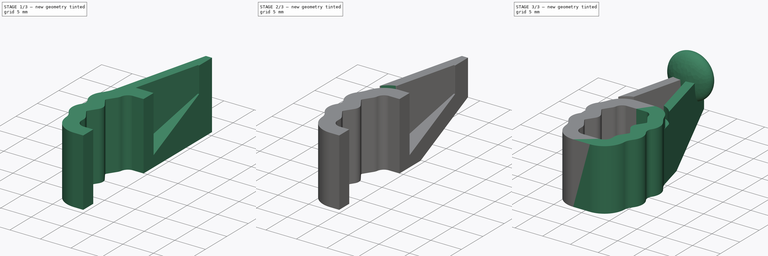
[diagram: build sequence overview — one tinted view per stage of 3, left to right]
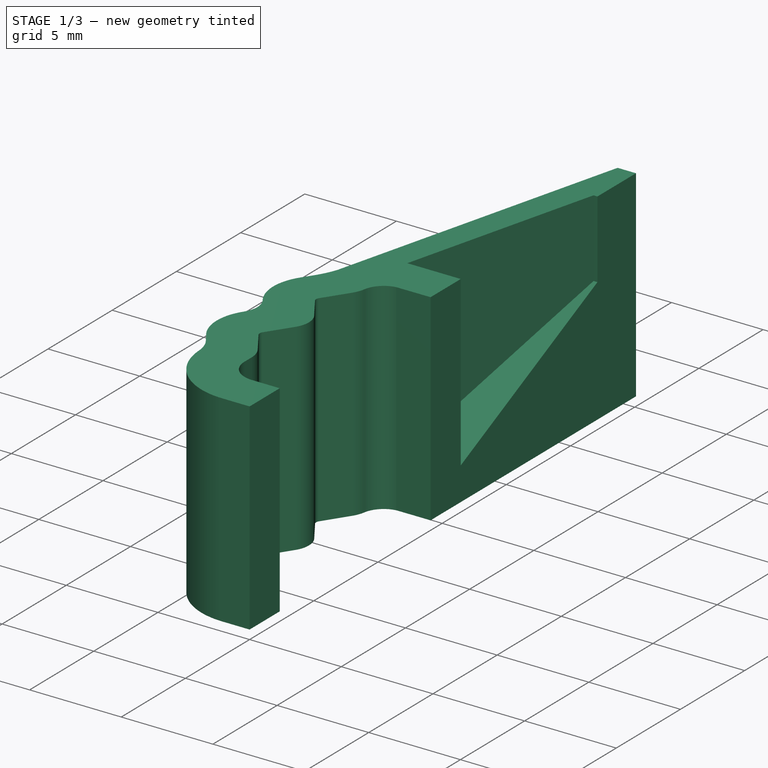
[diagram: stage 1 of 3 — iso view after this stage's code; geometry added in this stage tinted green]
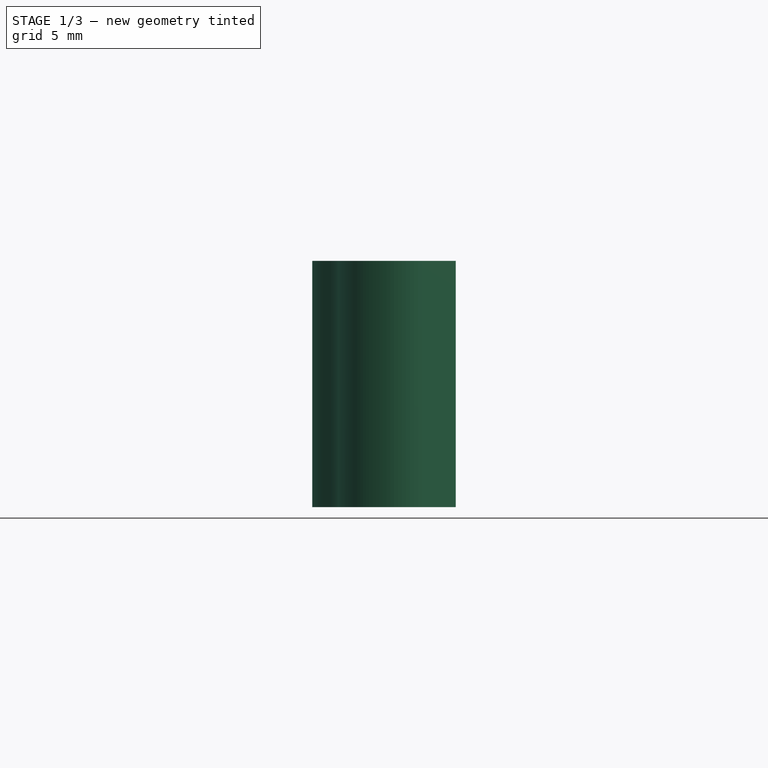
[diagram: stage 1 of 3 — front view after this stage's code; geometry added in this stage tinted green]
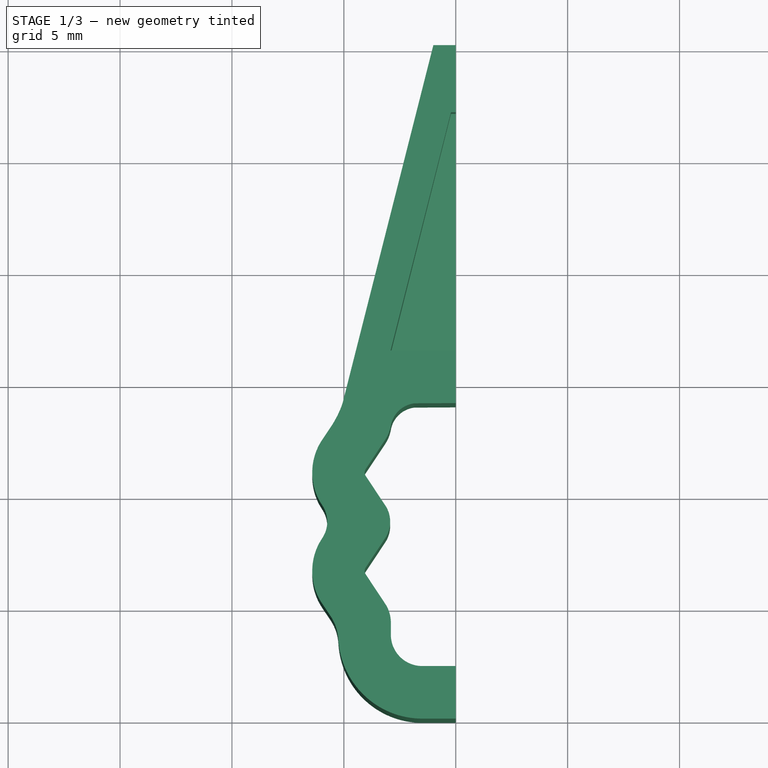
[diagram: stage 1 of 3 — top view after this stage's code; geometry added in this stage tinted green]
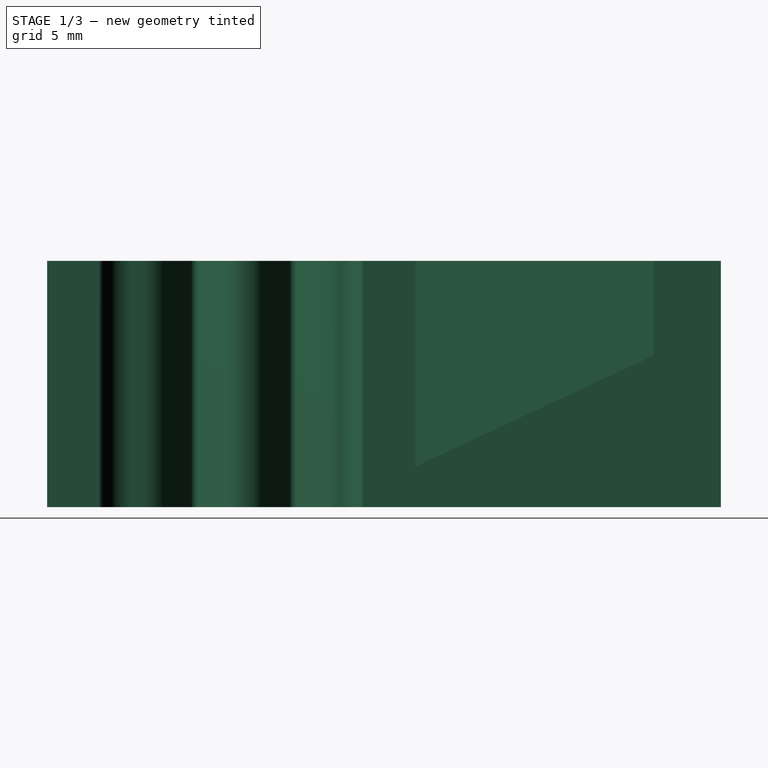
[diagram: stage 1 of 3 — right view after this stage's code; geometry added in this stage tinted green]
FCSTD DOCUMENT  (FreeCAD 1.0RUnknown)
Label: backfeed-preventer
License: All rights reserved
LicenseURL: http://en.wikipedia.org/wiki/All_rights_reserved
objects: Sketcher::SketchObject×5, PartDesign::Pad×3, PartDesign::Pocket×3, PartDesign::Plane×1, PartDesign::AdditiveEllipsoid×1, PartDesign::Mirrored×1, PartDesign::Body×1
note: 35 computed .brp shape members not serialized (recipe doc carries the construction recipe); baked Part::Feature solids carry a one-line shape summary decoded from their .brp

FEATURE [Sketcher::SketchObject] Sketch
  ArcFitTolerance = 1e-06
  AttachmentSupport = -> [XY_Plane]
  FullyConstrained = true
  MakeInternals = false
  MapMode = 5
  sketch-geometry (31):
    g0: ArcOfCircle CenterX=-3.79 CenterY=6.6 CenterZ=0 NormalX=0 NormalY=0 NormalZ=1 AngleXU=0 Radius=0.28 StartAngle=2.55499 EndAngle=3.72819
    g1: ArcOfCircle CenterX=-1.5 CenterY=3.75 CenterZ=0 NormalX=0 NormalY=0 NormalZ=1 AngleXU=0 Radius=1.4 StartAngle=3.14159 EndAngle=4.71239
    g2: LineSegment StartX=-2.9 StartY=4.29 StartZ=0 EndX=-2.9 EndY=3.75 EndZ=0
    g3: LineSegment StartX=-4.02319 StartY=6.44501 StartZ=0 EndX=-3.15745 EndY=5.14244 EndZ=0
    g4: LineSegment StartX=-1.5 StartY=2.35 StartZ=0 EndX=0 EndY=2.35 EndZ=0
    g5: ArcOfCircle CenterX=-4.25523 CenterY=8.8 CenterZ=0 NormalX=0 NormalY=0 NormalZ=1 AngleXU=0 Radius=1.32523 StartAngle=5.69658 EndAngle=6.86979
    g6: ArcOfCircle CenterX=-3.79 CenterY=11 CenterZ=0 NormalX=0 NormalY=0 NormalZ=1 AngleXU=0 Radius=0.28 StartAngle=2.55499 EndAngle=3.72819
    g7: ArcOfCircle CenterX=-7.06808 CenterY=8.8 CenterZ=0 NormalX=0 NormalY=0 NormalZ=1 AngleXU=0 Radius=1.32523 StartAngle=5.6921 EndAngle=6.87427
    g8: ArcOfCircle CenterX=-3.79 CenterY=11 CenterZ=0 NormalX=0 NormalY=0 NormalZ=1 AngleXU=0 Radius=2.62266 StartAngle=2.55051 EndAngle=3.73268
    g9: ArcOfCircle CenterX=-3.79 CenterY=6.6 CenterZ=0 NormalX=0 NormalY=0 NormalZ=1 AngleXU=0 Radius=2.62266 StartAngle=2.55051 EndAngle=3.73268
    g10: ArcOfCircle CenterX=-7.31563 CenterY=3.42381 CenterZ=0 NormalX=0 NormalY=0 NormalZ=1 AngleXU=0 Radius=2.07477 StartAngle=0.0560293 EndAngle=0.591083
    g11: ArcOfCircle CenterX=-1.5 CenterY=3.75 CenterZ=0 NormalX=0 NormalY=0 NormalZ=1 AngleXU=0 Radius=3.75 StartAngle=3.19762 EndAngle=4.71239
    g12: LineSegment StartX=0 StartY=0 StartZ=0 EndX=-1.5 EndY=0 EndZ=0
    g13: LineSegment StartX=-5.59287 StartY=4.58 StartZ=0 EndX=-5.96769 EndY=5.1385 EndZ=0
    g14: LineSegment StartX=-4.02319 StartY=6.75499 StartZ=0 EndX=-3.15154 EndY=8.06644 EndZ=0
    g15: LineSegment StartX=-4.02319 StartY=10.845 StartZ=0 EndX=-3.15154 EndY=9.53356 EndZ=0
    g16: LineSegment StartX=-4.02319 StartY=11.155 StartZ=0 EndX=-3.15154 EndY=12.4664 EndZ=0
    g17: LineSegment StartX=-1.7 StartY=14.1 StartZ=0 EndX=0 EndY=14.1 EndZ=0
    g18: LineSegment StartX=0 StartY=16.45 StartZ=0 EndX=-1.7 EndY=16.45 EndZ=0
    g19: LineSegment StartX=-5.96769 StartY=12.4615 StartZ=0 EndX=-5.59287 EndY=13.02 EndZ=0
    g20: LineSegment [constr] StartX=0 StartY=16.45 StartZ=0 EndX=0 EndY=14.1 EndZ=0
    g21: LineSegment [constr] StartX=0 StartY=2.35 StartZ=0 EndX=0 EndY=0 EndZ=0
    g22: GeomPoint X=-4.07 Y=6.6 Z=0
    g23: GeomPoint X=-2.93 Y=8.8 Z=0
    g24: ArcOfCircle CenterX=-4.44 CenterY=4.29 CenterZ=0 NormalX=0 NormalY=0 NormalZ=1 AngleXU=0 Radius=1.54 StartAngle=2e-16 EndAngle=0.586601
    g25: ArcOfCircle CenterX=-1.7 CenterY=12.8813 CenterZ=0 NormalX=0 NormalY=0 NormalZ=1 AngleXU=0 Radius=1.21875 StartAngle=1.5708 EndAngle=2.96597
    g26: ArcOfCircle CenterX=-4.53167 CenterY=13.3837 CenterZ=0 NormalX=0 NormalY=0 NormalZ=1 AngleXU=0 Radius=1.65717 StartAngle=5.69658 EndAngle=6.10756
    g27: ArcOfCircle CenterX=-1.7 CenterY=12.8813 CenterZ=0 NormalX=0 NormalY=0 NormalZ=1 AngleXU=0 Radius=3.56875 StartAngle=1.5708 EndAngle=2.80139
    g28: ArcOfCircle CenterX=-9.49999 CenterY=15.6422 CenterZ=0 NormalX=0 NormalY=0 NormalZ=1 AngleXU=0 Radius=4.70546 StartAngle=5.6921 EndAngle=5.94298
    g29: LineSegment StartX=0 StartY=14.1 StartZ=0 EndX=0 EndY=16.45 EndZ=0
    g30: LineSegment StartX=0 StartY=0 StartZ=0 EndX=0 EndY=2.35 EndZ=0
  constraints (75):
    c: Vertical(g2)
    c: PointOnObject(g4,g-2)
    c: Horizontal(g4)
    c: PointOnObject(g11,g-1)
    c: Coincident(g12,g-1)
    c: PointOnObject(g17,g-2)
    c: Horizontal(g17)
    c: PointOnObject(g18,g-2)
    c: Horizontal(g18)
    c: Tangent(g16,g6) = 1.5708
    c: Tangent(g15,g6) = -1.5708
    c: Tangent(g15,g5) = 1.5708
    c: Tangent(g14,g5) = -1.5708
    c: Tangent(g14,g0) = 1.5708
    c: Tangent(g3,g0) = -1.5708
    c: Tangent(g4,g1) = -1.5708
    c: Tangent(g2,g1) = -1.5708
    c: Tangent(g12,g11) = 1.5708
    c: Tangent(g11,g10) = 1.5708
    c: Tangent(g13,g10) = -1.5708
    c: Tangent(g13,g9) = 1.5708
    c: Tangent(g9,g7) = 1.5708
    c: Tangent(g8,g7) = 1.5708
    c: Tangent(g19,g8) = 1.5708
    c: DistanceY(g12,g4) = 2.35
    c: DistanceX(g12,g12) = 1.5
    c: DistanceY(g4,g17) = 11.75
    c: Coincident(g20,g18)
    c: Coincident(g20,g17)
    c: Coincident(g21,g4)
    c: Coincident(g21,g12)
    c: Equal(g20,g21)
    c: Vertical(g6,g6)
    c: Vertical(g0,g0)
    c: DistanceX(g2,g4) = 2.9
    c: DistanceY(g-1,g22) = 6.6
    c: PointOnObject(g22,g0)
    c: DistanceY(g-1,g23) = 8.8
    c: PointOnObject(g23,g5)
    c: Horizontal(g5,g23)
    c: DistanceY(g2,g2) = 0.54
    c: Horizontal(g0,g22)
    c: Vertical(g5,g5)
    c: Equal(g6,g0)
    c: Vertical(g6,g0)
    c: Vertical(g5,g16)
    c: Tangent(g24,g3) = 1.5708
    c: Tangent(g24,g2) = 1.5708
    c: Tangent(g25,g17) = 1.5708
    c: Tangent(g26,g16) = -1.5708
    c: Vertical(g2,g26)
    c: Tangent(g25,g26) = 1.5708
    c: Coincident(g11,g1)
    c: Vertical(g9,g7)
    c: Coincident(g9,g0)
    c: Horizontal(g7,g23)
    c: Distance(g10,g-1) = 3.54
    c: DistanceY(g-1,g10) = 4.58
    c: Equal(g5,g7)
    c: Vertical(g8,g7)
    c: Coincident(g8,g6)
    c: Tangent(g27,g18) = -1.5708
    c: Tangent(g28,g27) = 1.5708
    c: Tangent(g28,g19) = -1.5708
    c: Vertical(g19,g10)
    c: Coincident(g27,g25)
    c: DistanceX(g22,g2) = 1.17
    c: DistanceX(g23,g2) = 0.03
    c: Distance(g0,g22) = 0.28
    c: DistanceX(g24,g2) = 1.54
    c: DistanceX(g17,g11) = 0.2
    c: Coincident(g29,g17)
    c: Coincident(g29,g18)
    c: Coincident(g30,g12)
    c: Coincident(g30,g4)
FEATURE [PartDesign::Pad] Pad  label="base"
  Direction = (0,0,1)
  Length = 11
  Length2 = 10
  Profile = -> Sketch
  ReferenceAxis = -> Sketch [N_Axis]
  Suppressed = false
  Type = 0
FEATURE [PartDesign::Plane] DatumPlane
  AttachmentOffset = pos=(0,19,0) rot=(1,0,0;0.436332rad)
  AttachmentSupport = -> [XY_Plane]
  Length = 61.9221
  MapMode = 5
  Placement = pos=(0,19,0) rot=(1,0,0;0.436332rad)
  ResizeMode = 0
  Width = 82.9906
FEATURE [Sketcher::SketchObject] Sketch002  label="circular cut-away"
  ArcFitTolerance = 1e-06
  AttachmentOffset = pos=(0,0,11) rot=(0,0,1;0rad)
  AttachmentSupport = -> [XY_Plane]
  FullyConstrained = true
  MakeInternals = false
  MapMode = 5
  Placement = pos=(0,0,11) rot=(0,0,1;0rad)
  sketch-geometry (6):
    g0: ArcOfCircle CenterX=-1.7 CenterY=12.8813 CenterZ=0 NormalX=0 NormalY=0 NormalZ=1 AngleXU=0 Radius=3.56875 StartAngle=1.5708 EndAngle=2.80139
    g1: ArcOfCircle CenterX=-1.7 CenterY=13.8813 CenterZ=0 NormalX=0 NormalY=0 NormalZ=1 AngleXU=0 Radius=3.56875 StartAngle=1.5708 EndAngle=2.80139
    g2: LineSegment StartX=-5.06421 StartY=14.0721 StartZ=0 EndX=-5.06421 EndY=15.0721 EndZ=0
    g3: LineSegment StartX=-1.7 StartY=16.45 StartZ=0 EndX=0 EndY=16.45 EndZ=0
    g4: LineSegment StartX=-1.7 StartY=17.45 StartZ=0 EndX=0 EndY=17.45 EndZ=0
    g5: LineSegment StartX=0 StartY=17.45 StartZ=0 EndX=0 EndY=16.45 EndZ=0
  constraints (16):
    c: Coincident(g-3,g0)
    c: Coincident(g0,g-3)
    c: Equal(g1,g0)
    c: Vertical(g1,g0)
    c: Distance(g1,g0) = 1
    c: Vertical(g1,g0)
    c: Coincident(g2,g0)
    c: Coincident(g2,g1)
    c: PointOnObject(g3,g-2)
    c: PointOnObject(g4,g-2)
    c: Horizontal(g4)
    c: Tangent(g4,g1) = 1.5708
    c: Tangent(g3,g0) = 1.5708
    c: Horizontal(g3)
    c: Coincident(g5,g4)
    c: Coincident(g5,g3)
FEATURE [Sketcher::SketchObject] Sketch001  label="nose_sketch"
  ArcFitTolerance = 1e-06
  AttachmentSupport = -> [XY_Plane]
  ExternalGeometry = -> [Pad,Sketch002]
  FullyConstrained = true
  MakeInternals = false
  MapMode = 5
  sketch-geometry (4):
    g0: LineSegment StartX=-1 StartY=30.1 StartZ=0 EndX=-5.06421 EndY=14.0721 EndZ=0
    g1: LineSegment StartX=-2e-16 StartY=30.1 StartZ=0 EndX=-2e-16 EndY=14.1 EndZ=0
    g2: LineSegment StartX=-2e-16 StartY=14.1 StartZ=0 EndX=-5.06421 EndY=14.0721 EndZ=0
    g3: LineSegment StartX=-2e-16 StartY=30.1 StartZ=0 EndX=-1 EndY=30.1 EndZ=0
  constraints (12):
    c: DistanceY(g1,g1) = 16
    c: Coincident(g1,g2)
    c: Coincident(g1,g-3)
    c: Coincident(g0,g2)
    c: Coincident(g-4,g0)
    c: Vertical(g1)
    c: Coincident(g3,g1)
    c: Horizontal(g3)
    c: Distance(g3,g3) = 1
    c: Coincident(g0,g3)
    c: DistanceY(g-5,g1) = 13.65
    c: DistanceY(g-6,g1) = 12.65
FEATURE [PartDesign::Pad] Pad001  label="nose"
  BaseFeature = -> Pad
  Direction = (0,0,1)
  Length = 11
  Length2 = 10
  Profile = -> Sketch001
  ReferenceAxis = -> Sketch001 [N_Axis]
  Suppressed = false
  Type = 0
FEATURE [Sketcher::SketchObject] Sketch003
  ArcFitTolerance = 1e-06
  AttachmentOffset = pos=(0,0,11) rot=(0,0,1;0rad)
  AttachmentSupport = -> [XY_Plane]
  ExternalGeometry = -> [Pad001]
  FullyConstrained = true
  MakeInternals = false
  MapMode = 5
  Placement = pos=(0,0,11) rot=(0,0,1;0rad)
  sketch-geometry (4):
    g0: LineSegment StartX=-2e-16 StartY=30.1 StartZ=0 EndX=-5 EndY=30.1 EndZ=0
    g1: LineSegment StartX=-5 StartY=30.1 StartZ=0 EndX=-5 EndY=27.1 EndZ=0
    g2: LineSegment StartX=-5 StartY=27.1 StartZ=0 EndX=0 EndY=26.6 EndZ=0
    g3: LineSegment StartX=0 StartY=26.6 StartZ=0 EndX=-2e-16 EndY=30.1 EndZ=0
  constraints (11):
    c: Coincident(g-4,g0)
    c: Horizontal(g0)
    c: Coincident(g0,g1)
    c: Vertical(g1)
    c: Coincident(g1,g2)
    c: PointOnObject(g2,g-2)
    c: Coincident(g2,g3)
    c: Coincident(g3,g0)
    c: DistanceX(g0,g0) = 5
    c: Distance(g1,g1) = 3
    c: DistanceY(g3,g3) = 3.5
FEATURE [Sketcher::SketchObject] Sketch004  label="nose cut-away"
  ArcFitTolerance = 1e-06
  AttachmentOffset = pos=(0,0,11) rot=(0,0,1;0rad)
  AttachmentSupport = -> [XY_Plane]
  ExternalGeometry = -> [Sketch001,Pad]
  FullyConstrained = true
  MakeInternals = false
  MapMode = 5
  Placement = pos=(0,0,11) rot=(0,0,1;0rad)
  sketch-geometry (4):
    g0: LineSegment StartX=0 StartY=16.45 StartZ=0 EndX=-2.91377 EndY=16.45 EndZ=0
    g1: LineSegment StartX=-2.91377 StartY=16.45 StartZ=0 EndX=-0.213239 EndY=27.1 EndZ=0
    g2: LineSegment StartX=0 StartY=27.1 StartZ=0 EndX=0 EndY=16.45 EndZ=0
    g3: LineSegment StartX=-0.213239 StartY=27.1 StartZ=0 EndX=0 EndY=27.1 EndZ=0
  constraints (11):
    c: Horizontal(g0)
    c: Coincident(g1,g0)
    c: Coincident(g2,g0)
    c: Parallel(g-3,g1)
    c: Coincident(g0,g-4)
    c: Distance(g-3,g1) = 1.5
    c: Horizontal(g3)
    c: Coincident(g1,g3)
    c: Coincident(g2,g3)
    c: PointOnObject(g2,g-2)
    c: Distance(g-3,g3) = 3
FEATURE [PartDesign::Pocket] Pocket  label="nose inner cut-away"
  BaseFeature = -> Pad001
  Direction = (0,0,-1)
  Length = 0
  Length2 = 5
  Offset = -3
  Profile = -> Sketch004
  ReferenceAxis = -> Sketch004 [N_Axis]
  Suppressed = false
  Type = 3
  UpToFace = -> DatumPlane [Plane]
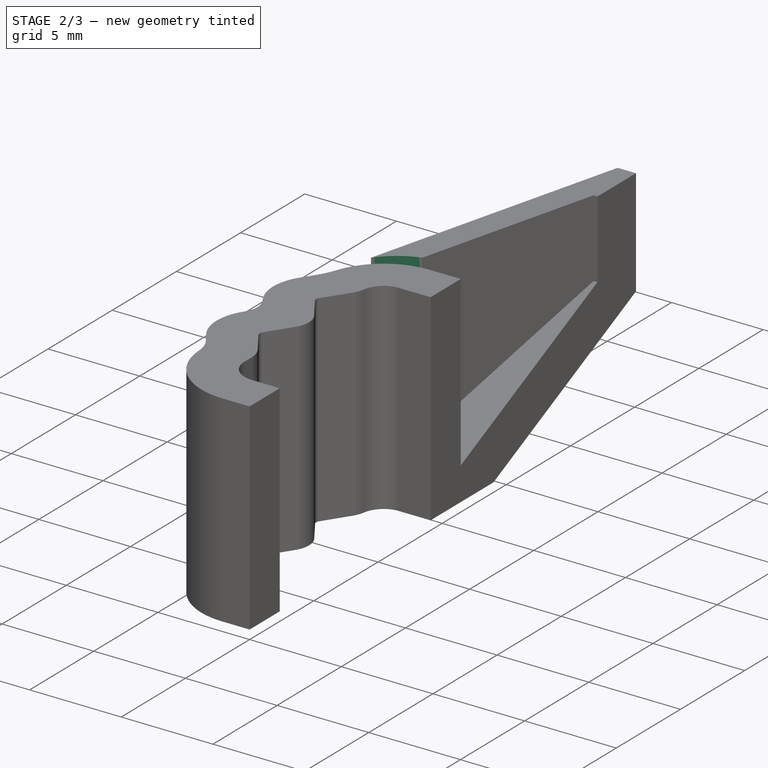
[diagram: stage 2 of 3 — iso view after this stage's code; geometry added in this stage tinted green]
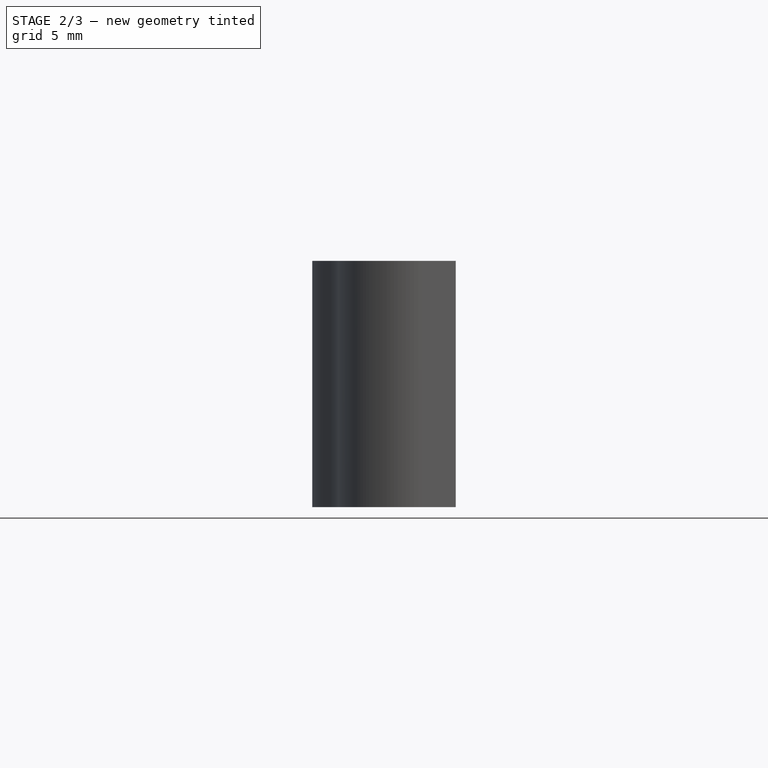
[diagram: stage 2 of 3 — front view after this stage's code; geometry added in this stage tinted green]
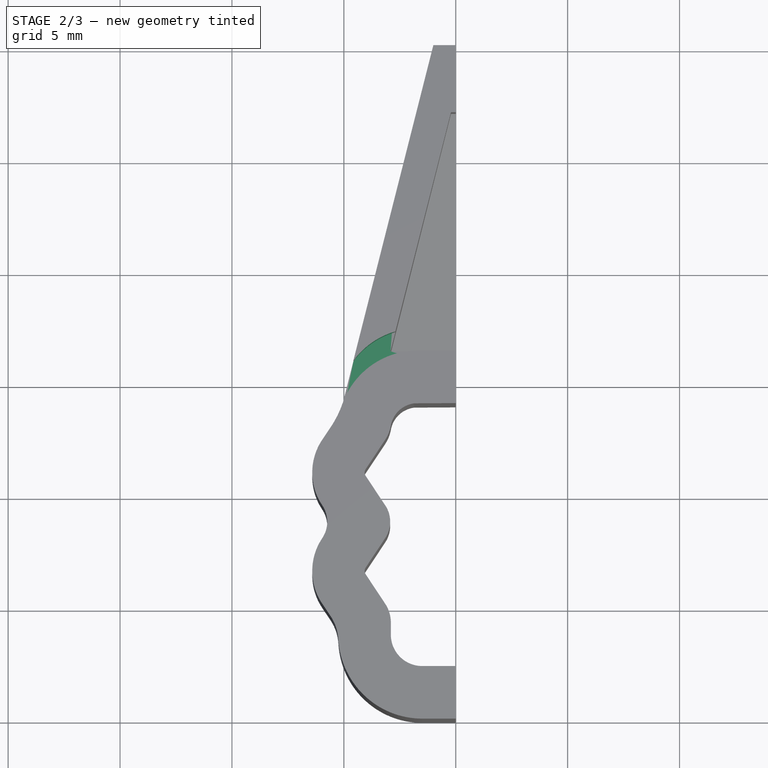
[diagram: stage 2 of 3 — top view after this stage's code; geometry added in this stage tinted green]
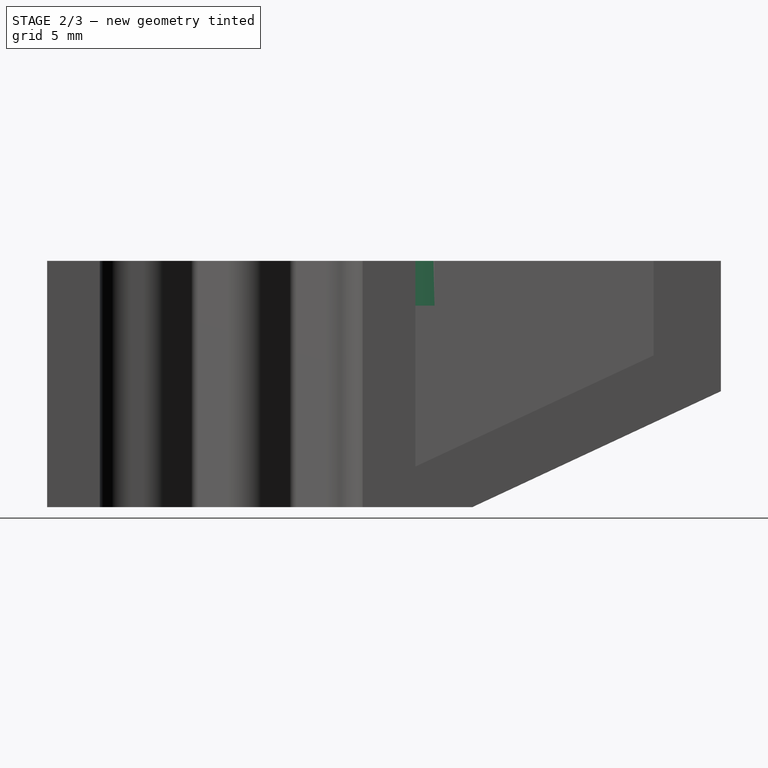
[diagram: stage 2 of 3 — right view after this stage's code; geometry added in this stage tinted green]
FEATURE [PartDesign::Pocket] Pocket001  label="nose lower cut-away"
  BaseFeature = -> Pocket
  Direction = (0,0.422618,-0.906308)
  Length = 5
  Length2 = 5
  Profile = -> DatumPlane
  Suppressed = false
  Type = 1
FEATURE [PartDesign::Pocket] Pocket002  label="circular cut-away001"
  BaseFeature = -> Pocket001
  Direction = (0,0,-1)
  Length = 2
  Length2 = 5
  Profile = -> Sketch002
  ReferenceAxis = -> Sketch002 [N_Axis]
  Suppressed = false
  Type = 0
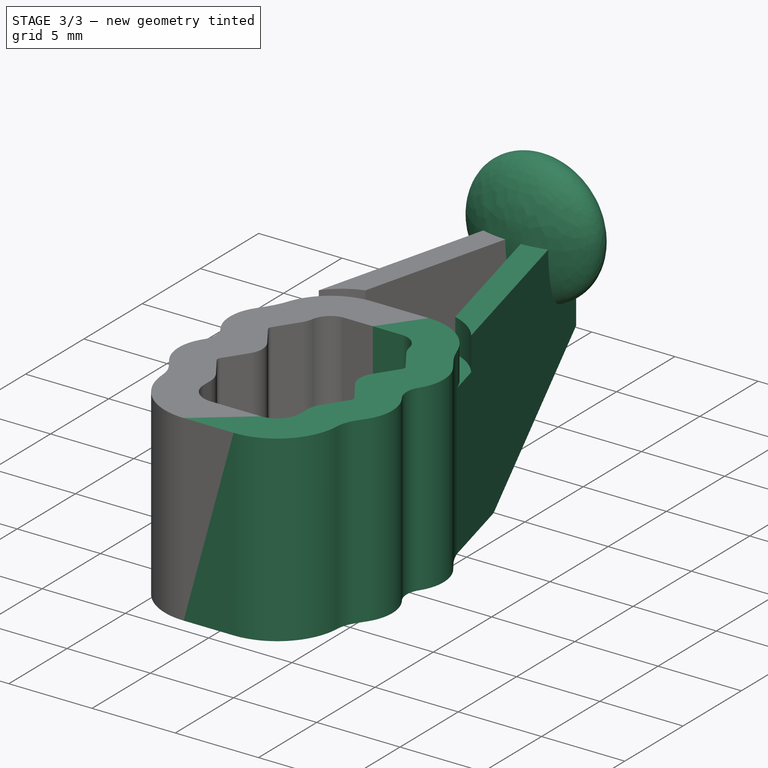
[diagram: stage 3 of 3 — iso view after this stage's code; geometry added in this stage tinted green]
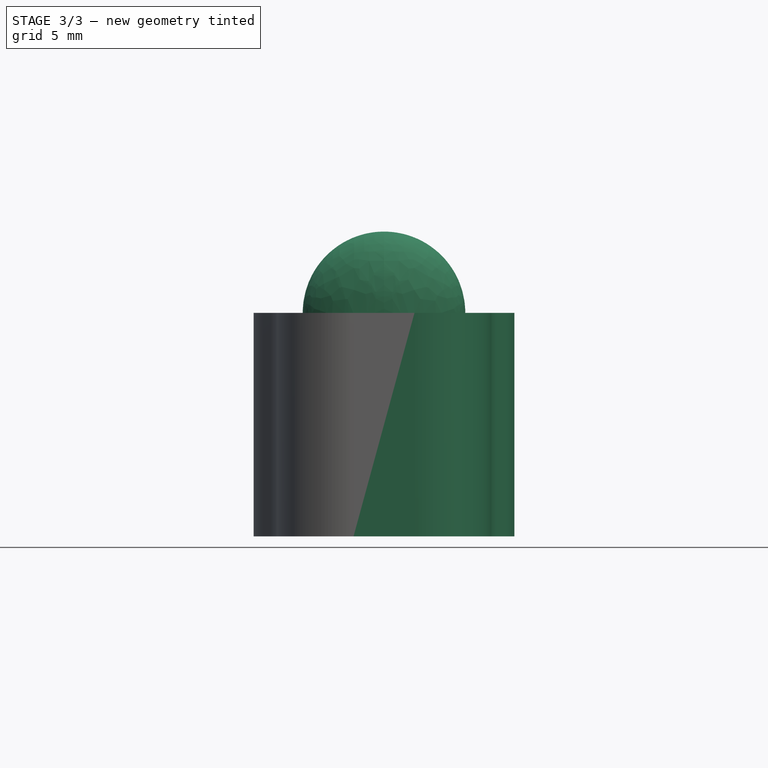
[diagram: stage 3 of 3 — front view after this stage's code; geometry added in this stage tinted green]
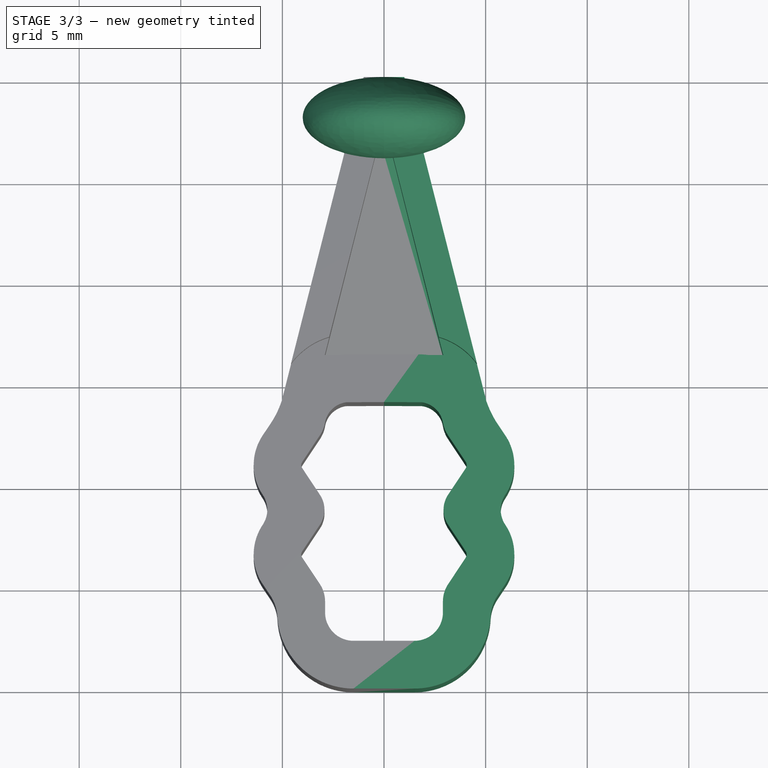
[diagram: stage 3 of 3 — top view after this stage's code; geometry added in this stage tinted green]
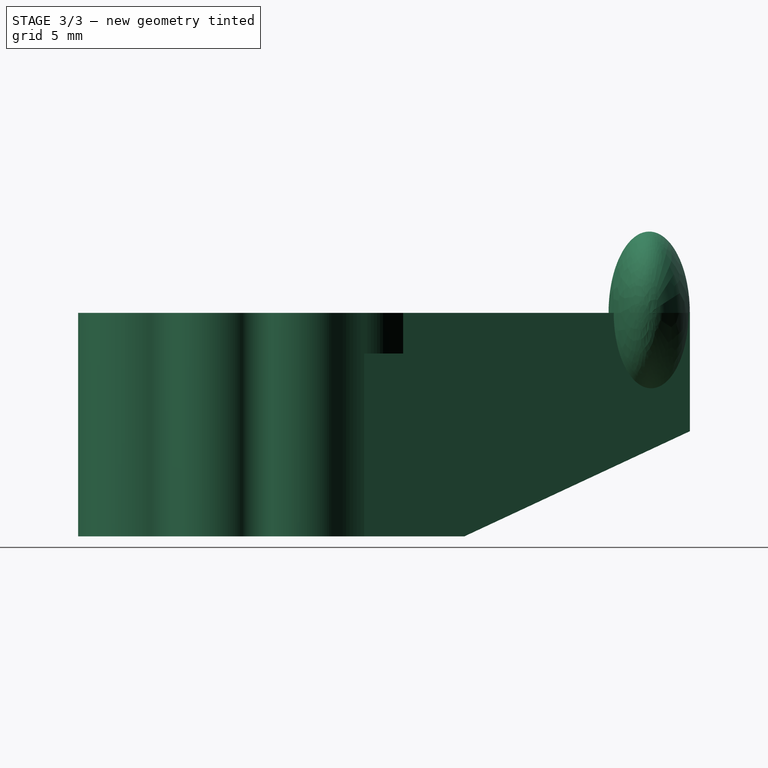
[diagram: stage 3 of 3 — right view after this stage's code; geometry added in this stage tinted green]
FEATURE [PartDesign::AdditiveEllipsoid] Ellipsoid
  Angle1 = -90
  Angle2 = 0
  Angle3 = 360
  AttacherType = Attacher::AttachEngine3D
  AttachmentOffset = pos=(-2,11,0) rot=(0,0,1;0rad)
  AttachmentSupport = -> [Sketch001]
  BaseFeature = -> Pocket002
  MapMode = 7
  Placement = pos=(-2e-16,28.1,11) rot=(0.57735,0.57735,0.57735;2.0944rad)
  Radius1 = 4
  Radius2 = 2
  Radius3 = 4
  Suppressed = false
  expr: .AttachmentOffset.Base.x = -Radius2
  expr: .AttachmentOffset.Base.y = <<nose>>.Length
FEATURE [PartDesign::Pad] Pad002  label="hook"
  BaseFeature = -> Ellipsoid
  Direction = (0,0,1)
  Length = 2
  Length2 = 10
  Placement = pos=(-2e-16,28.1,11) rot=(0.57735,0.57735,0.57735;2.0944rad)
  Profile = -> Sketch003
  ReferenceAxis = -> Sketch003 [N_Axis]
  Suppressed = true
  Type = 0
FEATURE [PartDesign::Mirrored] Mirrored
  BaseFeature = -> Pad002
  MirrorPlane = -> YZ_Plane
  Placement = pos=(-2e-16,28.1,11) rot=(0.57735,0.57735,0.57735;2.0944rad)
  Refine = true
  Suppressed = false
  TransformMode = 1
FEATURE [PartDesign::Body] Body
  AllowCompound = false
  Group = -> [DatumPlane,Pad,Sketch,Sketch001,Pad001,Sketch003,Sketch004,Pocket,Pocket001,Sketch002,Pocket002,Ellipsoid,Pad002,Mirrored]
  Origin = -> Origin
  Tip = -> Mirrored
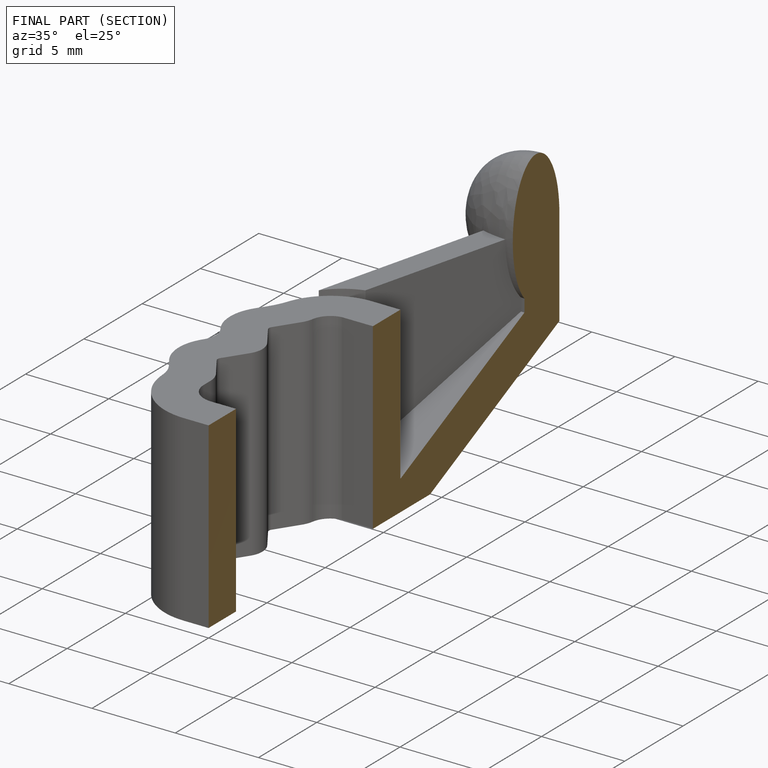
[diagram: finished part — half-section view (interior)]
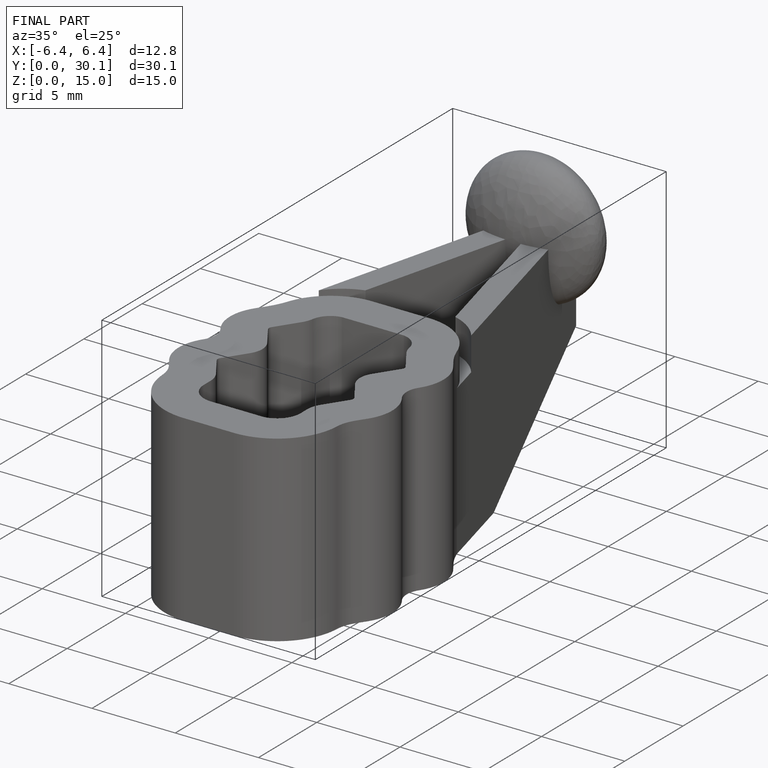
[diagram: finished part — iso view with bounding-box wireframe]
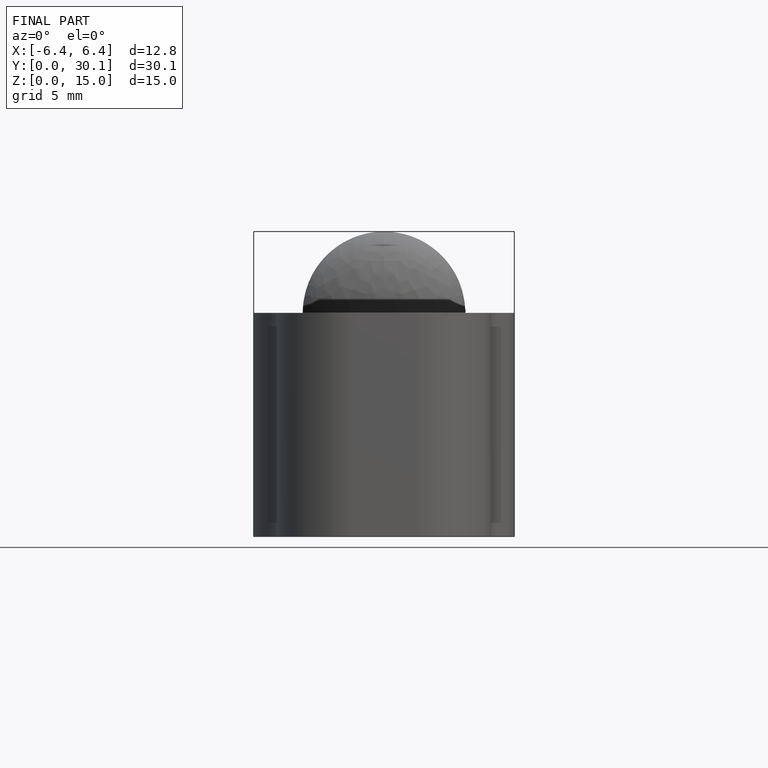
[diagram: finished part — front view with bounding-box wireframe]
